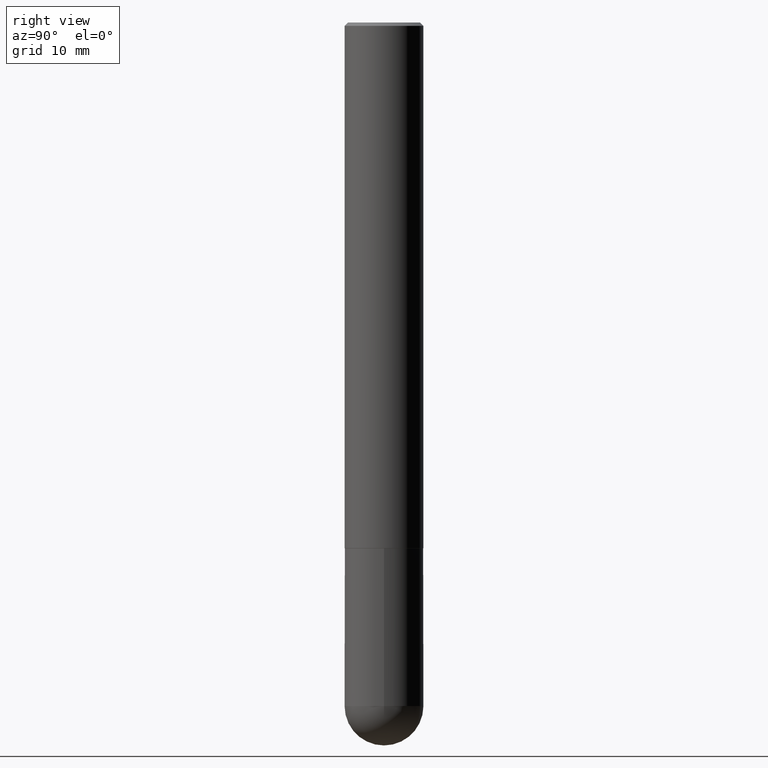
[diagram: clean part render]
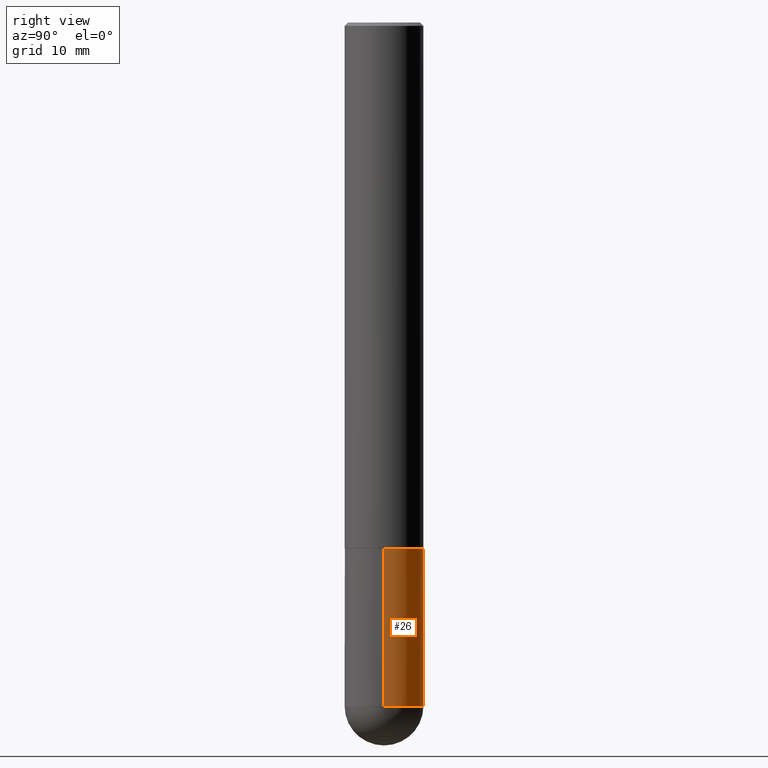
[diagram: same view with one face highlighted and labeled with its STEP entity id]
A machine part, right view. The second image highlights one B-rep face of the part: STEP entity #26.
In plain terms, the highlighted cylindrical surface (partial cylindrical patch) has radius 5.9995 mm, axis along (-0, 0, 1).
Its self-contained STEP definition (entity closure, byte-faithful):
#1 = AXIS2_PLACEMENT_3D ( 'NONE', #88, #159, #226 ) ;
#7 = LINE ( 'NONE', #98, #215 ) ;
#26 = ADVANCED_FACE ( 'NONE', ( #322 ), #95, .T. ) ;
#43 = ORIENTED_EDGE ( 'NONE', *, *, #185, .T. ) ;
#62 = DIRECTION ( 'NONE',  ( 1.000000000000000000, -6.982962677686265133E-15, 0.000000000000000000 ) ) ;
#71 = VERTEX_POINT ( 'NONE', #132 ) ;
#84 = LINE ( 'NONE', #217, #157 ) ;
#88 = CARTESIAN_POINT ( 'NONE',  ( 1.001297202692504215E-28, -1.429587034189326149E-14, -4.094500000000000028 ) ) ;
#95 = CYLINDRICAL_SURFACE ( 'NONE', #277, 0.2361999999999999933 ) ;
#97 = EDGE_LOOP ( 'NONE', ( #174, #43, #118, #294, #245 ) ) ;
#98 = CARTESIAN_POINT ( 'NONE',  ( -0.2361999999999999933, 1.678301941865356591E-15, -1.161852468318208757E-29 ) ) ;
#107 = EDGE_CURVE ( 'NONE', #71, #119, #214, .T. ) ;
#109 = CARTESIAN_POINT ( 'NONE',  ( 1.649375784469595330E-15, 0.2361999999999855882, -4.094500000000001805 ) ) ;
#118 = ORIENTED_EDGE ( 'NONE', *, *, #402, .F. ) ;
#119 = VERTEX_POINT ( 'NONE', #109 ) ;
#129 = CARTESIAN_POINT ( 'NONE',  ( 0.2361999999999999933, -1.264614540928986883E-14, -3.149600000000000399 ) ) ;
#132 = CARTESIAN_POINT ( 'NONE',  ( 0.2361999999999999933, -1.429569576782631264E-14, -4.094500000000000028 ) ) ;
#133 = VERTEX_POINT ( 'NONE', #129 ) ;
#157 = VECTOR ( 'NONE', #188, 39.37007874015748143 ) ;
#159 = DIRECTION ( 'NONE',  ( -2.445468806185136597E-29, 3.491481338843145583E-15, 1.000000000000000000 ) ) ;
#166 = CARTESIAN_POINT ( 'NONE',  ( 1.001297202692504215E-28, -1.429587034189326149E-14, -4.094500000000000028 ) ) ;
#174 = ORIENTED_EDGE ( 'NONE', *, *, #359, .T. ) ;
#177 = VERTEX_POINT ( 'NONE', #288 ) ;
#185 = EDGE_CURVE ( 'NONE', #355, #177, #7, .T. ) ;
#188 = DIRECTION ( 'NONE',  ( -2.445468806185136877E-29, 3.491481338843145188E-15, 1.000000000000000000 ) ) ;
#197 = DIRECTION ( 'NONE',  ( -2.445468806185136597E-29, 3.491481338843145583E-15, 1.000000000000000000 ) ) ;
#205 = DIRECTION ( 'NONE',  ( -2.445468806185136597E-29, 3.491481338843145583E-15, 1.000000000000000000 ) ) ;
#214 = CIRCLE ( 'NONE', #370, 0.2361999999999999933 ) ;
#215 = VECTOR ( 'NONE', #263, 39.37007874015748143 ) ;
#217 = CARTESIAN_POINT ( 'NONE',  ( 0.2361999999999999933, -1.649375784469496131E-15, 1.151752954443000088E-29 ) ) ;
#226 = DIRECTION ( 'NONE',  ( 1.000000000000000000, -6.982962677686265133E-15, 0.000000000000000000 ) ) ;
#242 = EDGE_CURVE ( 'NONE', #71, #133, #84, .T. ) ;
#245 = ORIENTED_EDGE ( 'NONE', *, *, #107, .T. ) ;
#251 = CARTESIAN_POINT ( 'NONE',  ( -0.2361999999999999933, -1.096801804149146287E-14, -4.094500000000000028 ) ) ;
#257 = CARTESIAN_POINT ( 'NONE',  ( 0.000000000000000000, 0.000000000000000000, 0.000000000000000000 ) ) ;
#263 = DIRECTION ( 'NONE',  ( -2.445468806185136877E-29, 3.491481338843145188E-15, 1.000000000000000000 ) ) ;
#267 = DIRECTION ( 'NONE',  ( -2.445468806185136597E-29, 3.491481338843145583E-15, 1.000000000000000000 ) ) ;
#277 = AXIS2_PLACEMENT_3D ( 'NONE', #257, #205, #384 ) ;
#287 = DIRECTION ( 'NONE',  ( 1.000000000000000000, -6.982962677686265133E-15, 0.000000000000000000 ) ) ;
#288 = CARTESIAN_POINT ( 'NONE',  ( -0.2361999999999999933, -1.096801804149146130E-14, -3.149600000000000399 ) ) ;
#289 = CIRCLE ( 'NONE', #377, 0.2361999999999999933 ) ;
#294 = ORIENTED_EDGE ( 'NONE', *, *, #242, .F. ) ;
#322 = FACE_OUTER_BOUND ( 'NONE', #97, .T. ) ;
#340 = CIRCLE ( 'NONE', #1, 0.2361999999999999933 ) ;
#345 = CARTESIAN_POINT ( 'NONE',  ( 7.702248551960706711E-29, -1.099676962482037231E-14, -3.149600000000000399 ) ) ;
#355 = VERTEX_POINT ( 'NONE', #251 ) ;
#359 = EDGE_CURVE ( 'NONE', #119, #355, #340, .T. ) ;
#370 = AXIS2_PLACEMENT_3D ( 'NONE', #166, #267, #62 ) ;
#377 = AXIS2_PLACEMENT_3D ( 'NONE', #345, #197, #287 ) ;
#384 = DIRECTION ( 'NONE',  ( 1.000000000000000000, -6.982962677686266711E-15, 4.876176775795936353E-29 ) ) ;
#402 = EDGE_CURVE ( 'NONE', #133, #177, #289, .T. ) ;